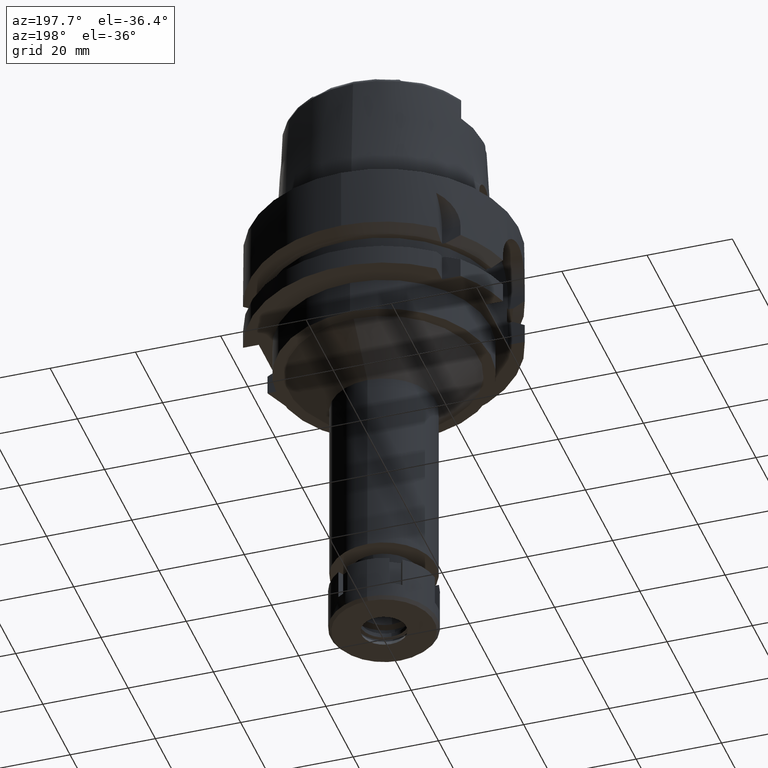
[diagram: clean part render]
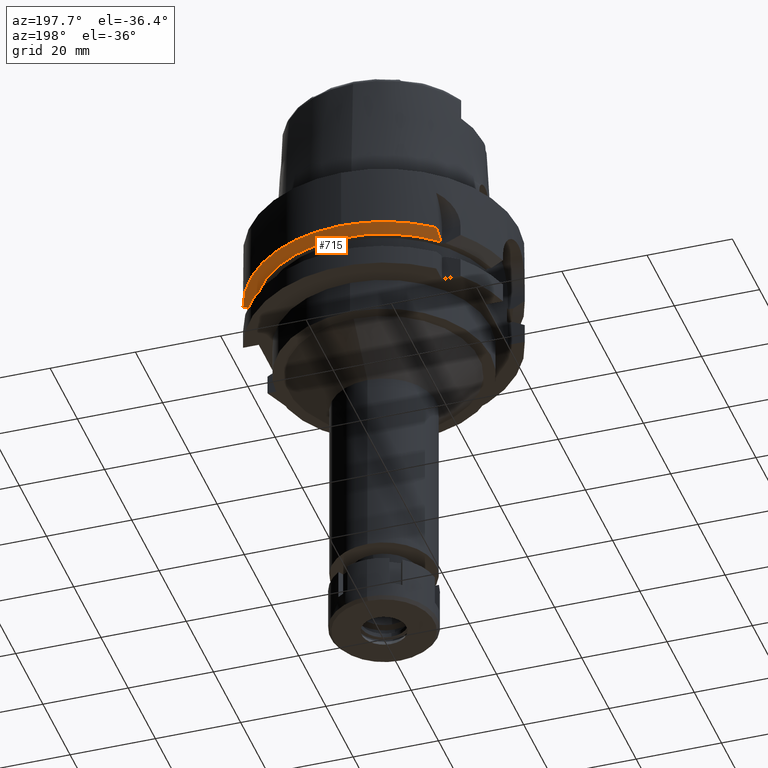
[diagram: same view with one face highlighted and labeled with its STEP entity id]
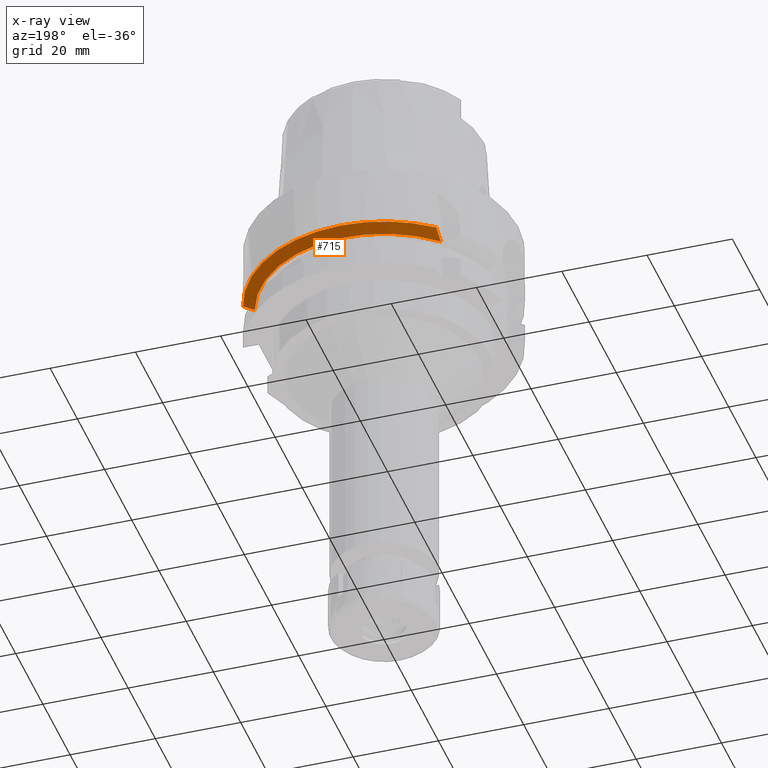
[diagram: x-ray of the same camera — body ghosted, the highlighted face saturated]
A machine part, auxiliary view. The second image highlights one B-rep face of the part: STEP entity #715.
The next image is the same camera in x-ray: the body ghosted, the highlighted face saturated — about 0% of this face is hidden behind the body in this view.
In plain terms, the highlighted conical surface has half-angle 60 deg.
Its self-contained STEP definition (entity closure, byte-faithful):
#27 = CIRCLE ( 'NONE', #3493, 28.89759526419000224 ) ;
#80 = CARTESIAN_POINT ( 'NONE',  ( 0.0000000000000000000, 0.0000000000000000000, -14.62250092523999889 ) ) ;
#103 = VERTEX_POINT ( 'NONE', #5440 ) ;
#113 = AXIS2_PLACEMENT_3D ( 'NONE', #6120, #1490, #1924 ) ;
#307 = CARTESIAN_POINT ( 'NONE',  ( 27.46035048403000189, 9.000000214624998662, -16.12500000000000000 ) ) ;
#355 = DIRECTION ( 'NONE',  ( 0.0000000000000000000, 0.0000000000000000000, 1.000000000000000000 ) ) ;
#422 = DIRECTION ( 'NONE',  ( 0.0000000000000000000, 0.0000000000000000000, 1.000000000000000000 ) ) ;
#715 = ADVANCED_FACE ( 'NONE', ( #3698 ), #2013, .T. ) ;
#831 = CARTESIAN_POINT ( 'NONE',  ( -20.00001377493000021, 24.33617572673000140, -14.62245154170999939 ) ) ;
#864 = CIRCLE ( 'NONE', #4717, 31.49999999999999645 ) ;
#1212 = CARTESIAN_POINT ( 'NONE',  ( 28.35167756726999855, 8.999999992174000596, -15.63548066473000020 ) ) ;
#1329 = CARTESIAN_POINT ( 'NONE',  ( 27.46035048403000189, 9.000000214624998662, -16.12500000000000000 ) ) ;
#1417 = AXIS2_PLACEMENT_3D ( 'NONE', #3209, #355, #1437 ) ;
#1437 = DIRECTION ( 'NONE',  ( 0.0000000000000000000, 1.000000000000000000, 0.0000000000000000000 ) ) ;
#1442 = VERTEX_POINT ( 'NONE', #4144 ) ;
#1490 = DIRECTION ( 'NONE',  ( 0.0000000000000000000, 0.0000000000000000000, 1.000000000000000000 ) ) ;
#1916 = ORIENTED_EDGE ( 'NONE', *, *, #2173, .T. ) ;
#1924 = DIRECTION ( 'NONE',  ( 0.0000000000000000000, 1.000000000000000000, 0.0000000000000000000 ) ) ;
#1976 = VERTEX_POINT ( 'NONE', #1329 ) ;
#2013 = CONICAL_SURFACE ( 'NONE', #1417, 30.19879763209999979, 1.047197551196400456 ) ;
#2142 = CARTESIAN_POINT ( 'NONE',  ( 30.18691748978999811, 9.000000692495998322, -14.62249534000999951 ) ) ;
#2173 = EDGE_CURVE ( 'NONE', #1976, #103, #27, .T. ) ;
#2199 = CARTESIAN_POINT ( 'NONE',  ( 29.87644197332999951, 9.000000692495998322, -14.79427626572000065 ) ) ;
#2522 = EDGE_LOOP ( 'NONE', ( #4902, #5279, #5359, #1916, #3329 ) ) ;
#2564 = EDGE_CURVE ( 'NONE', #1442, #2706, #5151, .T. ) ;
#2706 = VERTEX_POINT ( 'NONE', #831 ) ;
#2980 = VERTEX_POINT ( 'NONE', #3998 ) ;
#3209 = CARTESIAN_POINT ( 'NONE',  ( 0.0000000000000000000, 0.0000000000000000000, -15.37375046262000033 ) ) ;
#3329 = ORIENTED_EDGE ( 'NONE', *, *, #4363, .T. ) ;
#3386 = CARTESIAN_POINT ( 'NONE',  ( -20.00000808210187841, 21.97726579126707236, -15.65871069883595368 ) ) ;
#3398 = DIRECTION ( 'NONE',  ( 0.0000000000000000000, 0.0000000000000000000, 1.000000000000000000 ) ) ;
#3449 = CARTESIAN_POINT ( 'NONE',  ( -20.00000400335999728, 20.85831984813000162, -16.12500000000000000 ) ) ;
#3493 = AXIS2_PLACEMENT_3D ( 'NONE', #4666, #422, #4602 ) ;
#3698 = FACE_OUTER_BOUND ( 'NONE', #2522, .T. ) ;
#3998 = CARTESIAN_POINT ( 'NONE',  ( 30.18691748978999811, 9.000000692495998322, -14.62249534000999951 ) ) ;
#4056 = CARTESIAN_POINT ( 'NONE',  ( 29.26052457551999808, 8.999999705451999787, -15.13462954401999916 ) ) ;
#4144 = CARTESIAN_POINT ( 'NONE',  ( 0.0000000000000000000, 31.50000000000000000, -14.62250092523999889 ) ) ;
#4363 = EDGE_CURVE ( 'NONE', #103, #2706, #4739, .T. ) ;
#4602 = DIRECTION ( 'NONE',  ( 0.0000000000000000000, 1.000000000000000000, 0.0000000000000000000 ) ) ;
#4666 = CARTESIAN_POINT ( 'NONE',  ( 0.0000000000000000000, 0.0000000000000000000, -16.12500000000000000 ) ) ;
#4717 = AXIS2_PLACEMENT_3D ( 'NONE', #80, #3398, #5811 ) ;
#4739 = B_SPLINE_CURVE_WITH_KNOTS ( 'NONE', 3,
 ( #3449, #3386, #5337, #4867 ),
 .UNSPECIFIED., .F., .F.,
 ( 4, 4 ),
 ( 0.0000000000000000000, 1.000000000000000000 ),
 .UNSPECIFIED. ) ;
#4867 = CARTESIAN_POINT ( 'NONE',  ( -20.00001377493000021, 24.33617572673000140, -14.62245154170999939 ) ) ;
#4902 = ORIENTED_EDGE ( 'NONE', *, *, #2564, .F. ) ;
#5151 = CIRCLE ( 'NONE', #113, 31.50000000000000000 ) ;
#5279 = ORIENTED_EDGE ( 'NONE', *, *, #6112, .F. ) ;
#5289 = EDGE_CURVE ( 'NONE', #1976, #2980, #5340, .T. ) ;
#5337 = CARTESIAN_POINT ( 'NONE',  ( -20.00002748883304093, 23.13591286296415817, -15.15787019954225556 ) ) ;
#5340 = B_SPLINE_CURVE_WITH_KNOTS ( 'NONE', 3,
 ( #307, #5945, #1212, #4056, #2199, #2142 ),
 .UNSPECIFIED., .F., .F.,
 ( 4, 1, 1, 4 ),
 ( 0.0000000000000000000, 0.3333333333333000081, 0.6666666666667000474, 1.000000000000000000 ),
 .UNSPECIFIED. ) ;
#5359 = ORIENTED_EDGE ( 'NONE', *, *, #5289, .F. ) ;
#5440 = CARTESIAN_POINT ( 'NONE',  ( -20.00000400335999728, 20.85831984813000162, -16.12500000000000000 ) ) ;
#5811 = DIRECTION ( 'NONE',  ( 0.9583148474999051425, 0.2857142857143015191, 0.0000000000000000000 ) ) ;
#5945 = CARTESIAN_POINT ( 'NONE',  ( 27.75579579505999916, 9.000000214624998662, -15.96290825789000323 ) ) ;
#6112 = EDGE_CURVE ( 'NONE', #2980, #1442, #864, .T. ) ;
#6120 = CARTESIAN_POINT ( 'NONE',  ( 0.0000000000000000000, 0.0000000000000000000, -14.62250092523999889 ) ) ;